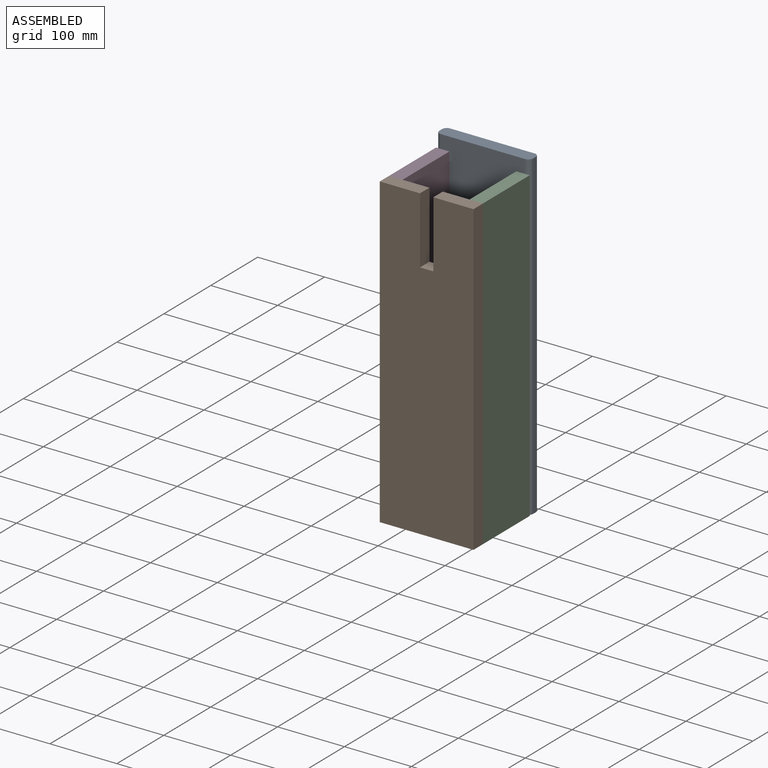
[diagram: assembled view]
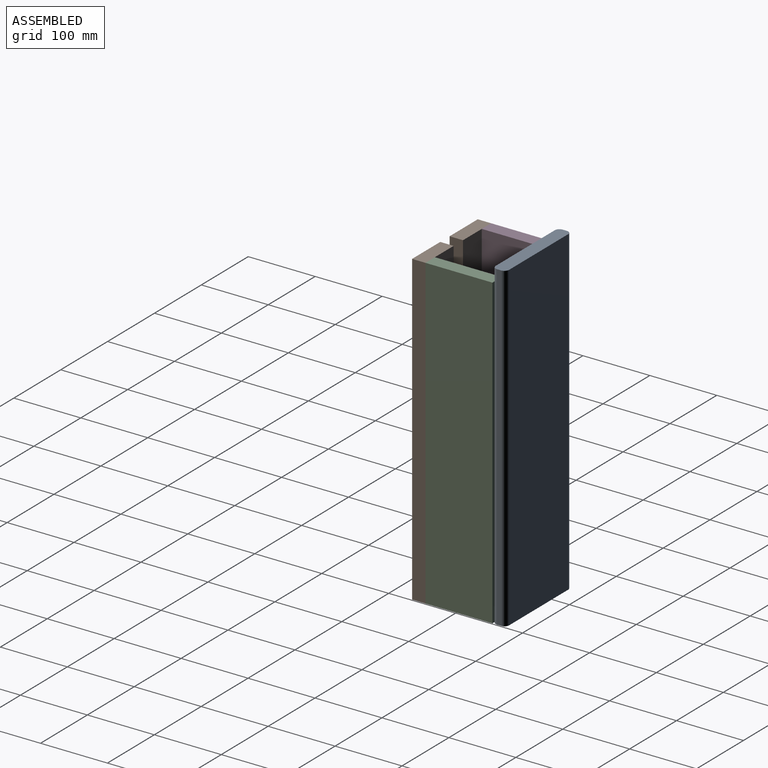
[diagram: assembled view, second angle]
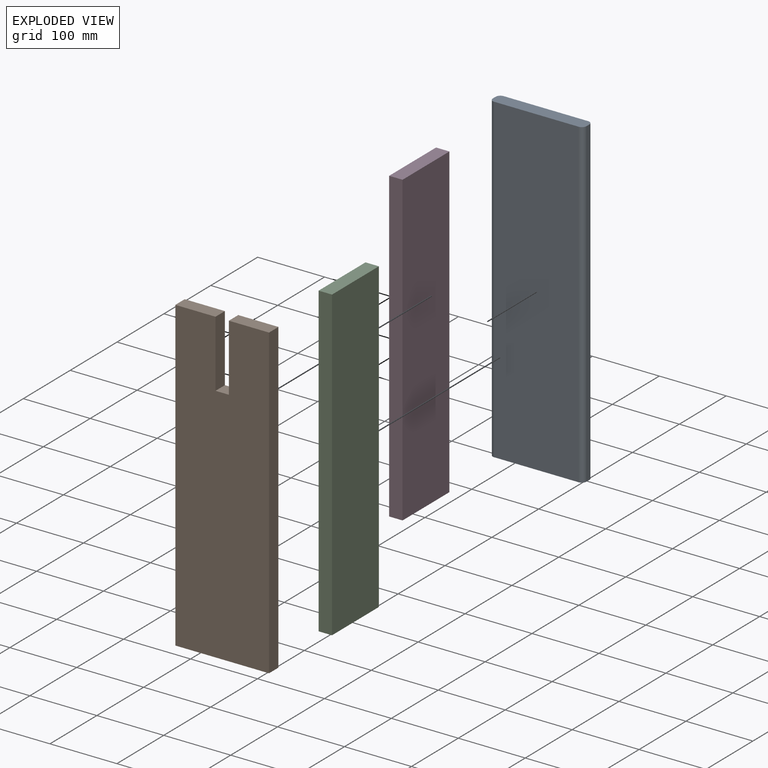
[diagram: exploded view]
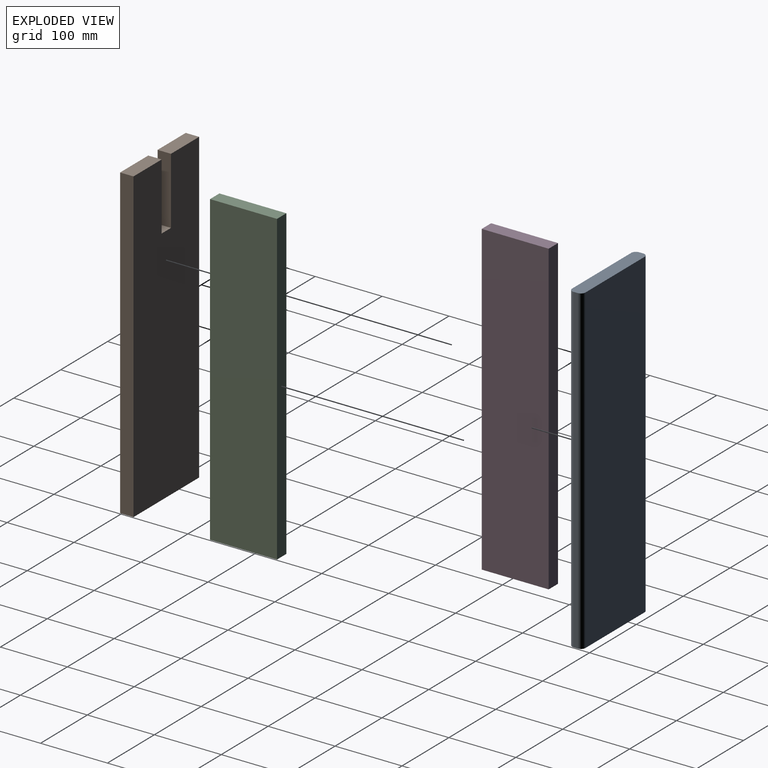
[diagram: exploded view, second angle]
ASSEMBLY  parts=4 mates=3
PART A: 10 faces, bbox 140x20x480 mm
  f0: plane 480x6mm, normal (-1,0,0), area 2880mm2, adj f4,f5,f6,f9
  f1: plane 480x126mm, normal (0,-1,0), area 60480mm2, adj f4,f5,f6,f7
  f2: plane 480x6mm, normal (1,0,0), area 2880mm2, adj f4,f5,f7,f8
  f3: plane 480x126mm, normal (0,1,0), area 60480mm2, adj f4,f5,f8,f9
  f4: plane 140x20mm, normal (0,0,1), area 2757.9mm2, adj f0,f1,f2,f3,f6,f7,f8,f9
  f5: plane 140x20mm, normal (0,0,-1), area 2757.9mm2, adj f0,f1,f2,f3,f6,f7,f8,f9
  f6: cylinder r=7mm len=480mm, axis (0,0,1), area 5277.9mm2, adj f0,f1,f4,f5
  f7: cylinder r=7mm len=480mm, axis (0,0,-1), area 5277.9mm2, adj f1,f2,f4,f5
  f8: cylinder r=7mm len=480mm, axis (0,0,1), area 5277.9mm2, adj f2,f3,f4,f5
  f9: cylinder r=7mm len=480mm, axis (0,0,-1), area 5277.9mm2, adj f0,f3,f4,f5
PART B: 10 faces, bbox 140x20x460 mm
  f0: plane 60x20mm, normal (0,0,1), area 1200mm2, adj f1,f3,f4,f9
  f1: plane 460x140mm, normal (0,-1,0), area 62400mm2, adj f0,f2,f3,f5,f6,f7,f8,f9
  f2: plane 460x20mm, normal (-1,0,0), area 9200mm2, adj f1,f4,f5,f6
  f3: plane 460x20mm, normal (1,0,0), area 9200mm2, adj f0,f1,f4,f6
  f4: plane 460x140mm, normal (0,1,0), area 62400mm2, adj f0,f2,f3,f5,f6,f7,f8,f9
  f5: plane 60x20mm, normal (0,0,1), area 1200mm2, adj f1,f2,f4,f7
  f6: plane 140x20mm, normal (0,0,-1), area 2800mm2, adj f1,f2,f3,f4
  f7: plane 100x20mm, normal (1,0,0), area 2000mm2, adj f1,f4,f5,f8
  f8: plane 20x20mm, normal (0,0,1), area 400mm2, adj f1,f4,f7,f9
  f9: plane 100x20mm, normal (-1,0,0), area 2000mm2, adj f0,f1,f4,f8
PART C: 6 faces, bbox 100x20x460 mm
  f0: plane 460x20mm, normal (-1,0,0), area 9200mm2, adj f1,f3,f4,f5
  f1: plane 460x100mm, normal (0,-1,0), area 46000mm2, adj f0,f2,f4,f5
  f2: plane 460x20mm, normal (1,0,0), area 9200mm2, adj f1,f3,f4,f5
  f3: plane 460x100mm, normal (0,1,0), area 46000mm2, adj f0,f2,f4,f5
  f4: plane 100x20mm, normal (0,0,1), area 2000mm2, adj f0,f1,f2,f3
  f5: plane 100x20mm, normal (0,0,-1), area 2000mm2, adj f0,f1,f2,f3
PART D: same geometry as C
PLACE A t=(72.14,163.57,-50.78)mm
PLACE B rot(axis=(0,0,1),180deg) t=(212.14,63.57,-50.78)mm
PLACE C rot(axis=(0.71,0.71,0),180deg) t=(192.14,63.57,409.22)mm
PLACE D rot(axis=(0.71,0.71,0),180deg) t=(72.14,63.57,409.22)mm
MATE planar D.f2 <-> A.f1  axis (0,1,0) through (82.14,163.57,179.22)mm
MATE planar C.f2 <-> A.f1  axis (0,1,0) through (202.14,163.57,179.22)mm
MATE planar B.f1 <-> C.f0  axis (0,1,0) through (142.14,63.57,173.45)mm
